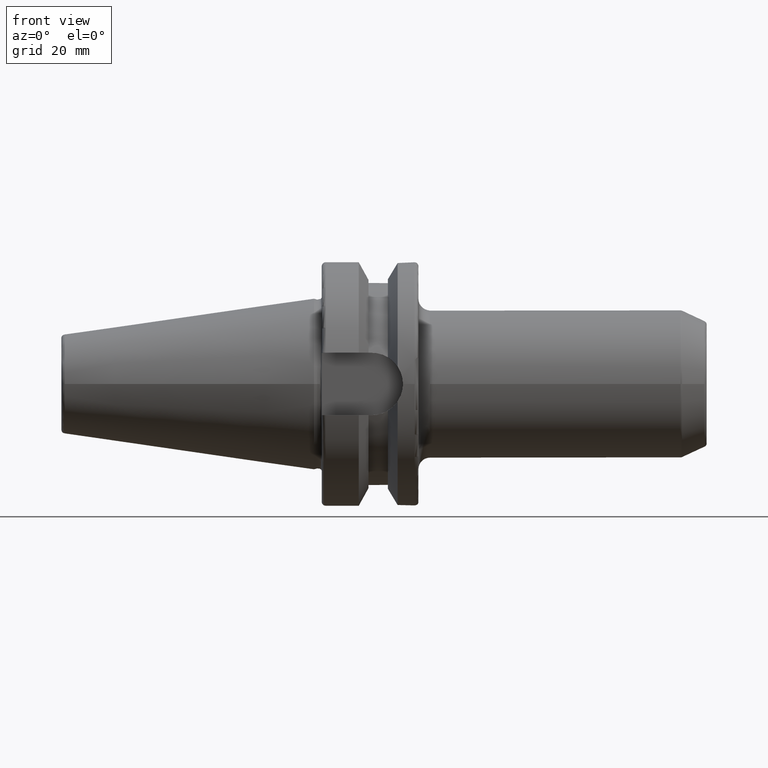
[diagram: clean part render]
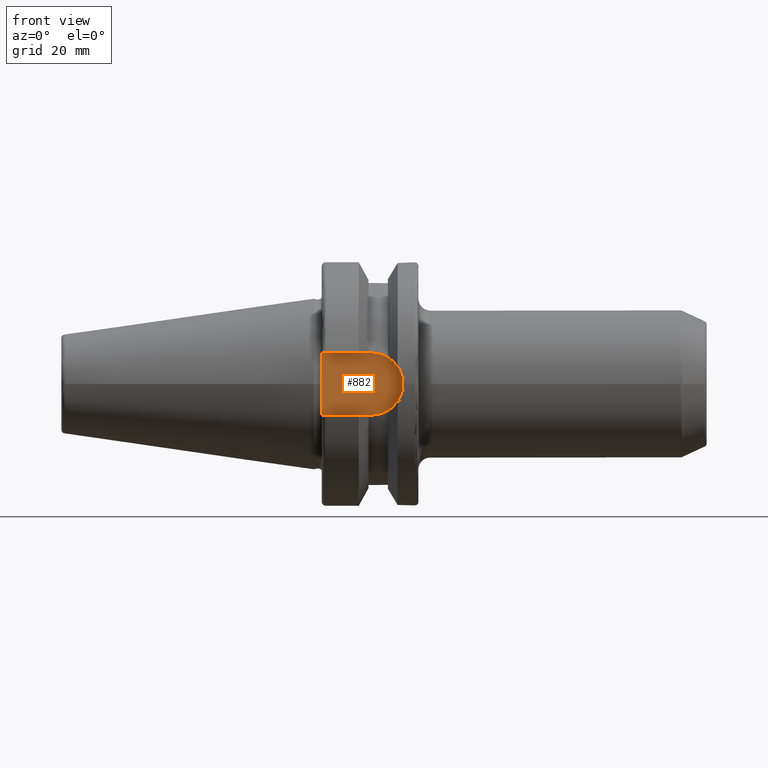
[diagram: same view with one face highlighted and labeled with its STEP entity id]
A machine part, front view. The second image highlights one B-rep face of the part: STEP entity #882.
In plain terms, the highlighted planar face has unit normal (0, 1, 0).
Its self-contained STEP definition (entity closure, byte-faithful):
#65=LINE('',#1571,#111);
#67=LINE('',#1576,#113);
#71=LINE('',#1598,#117);
#111=VECTOR('',#1169,10.);
#113=VECTOR('',#1173,10.);
#117=VECTOR('',#1179,10.);
#171=PLANE('',#986);
#202=FACE_OUTER_BOUND('',#261,.T.);
#261=EDGE_LOOP('',(#689,#690,#691,#692));
#324=CIRCLE('',#983,8.05);
#398=VERTEX_POINT('',#1542);
#399=VERTEX_POINT('',#1544);
#405=VERTEX_POINT('',#1569);
#407=VERTEX_POINT('',#1575);
#499=EDGE_CURVE('',#398,#399,#324,.T.);
#507=EDGE_CURVE('',#405,#398,#65,.T.);
#509=EDGE_CURVE('',#399,#407,#67,.T.);
#515=EDGE_CURVE('',#407,#405,#71,.T.);
#689=ORIENTED_EDGE('',*,*,#509,.F.);
#690=ORIENTED_EDGE('',*,*,#499,.F.);
#691=ORIENTED_EDGE('',*,*,#507,.F.);
#692=ORIENTED_EDGE('',*,*,#515,.F.);
#882=ADVANCED_FACE('',(#202),#171,.F.);
#983=AXIS2_PLACEMENT_3D('',#1545,#1160,#1161);
#986=AXIS2_PLACEMENT_3D('',#1597,#1177,#1178);
#1160=DIRECTION('center_axis',(0.,1.,0.));
#1161=DIRECTION('ref_axis',(0.,0.,1.));
#1169=DIRECTION('',(1.,0.,8.57315076930623E-17));
#1173=DIRECTION('',(-1.,0.,-8.57315076930623E-17));
#1177=DIRECTION('center_axis',(0.,1.,0.));
#1178=DIRECTION('ref_axis',(0.,0.,1.));
#1179=DIRECTION('',(0.,0.,1.));
#1542=CARTESIAN_POINT('',(14.95,-22.6,8.05));
#1544=CARTESIAN_POINT('',(14.95,-22.6,-8.05));
#1545=CARTESIAN_POINT('Origin',(14.95,-22.6,0.));
#1569=CARTESIAN_POINT('',(1.99999999999999,-22.6,8.05));
#1571=CARTESIAN_POINT('',(1.99999999999999,-22.6,8.05));
#1575=CARTESIAN_POINT('',(1.99999999999999,-22.6,-8.05));
#1576=CARTESIAN_POINT('',(14.95,-22.6,-8.05));
#1597=CARTESIAN_POINT('Origin',(12.5,-22.6,0.));
#1598=CARTESIAN_POINT('',(1.99999999999999,-22.6,0.));